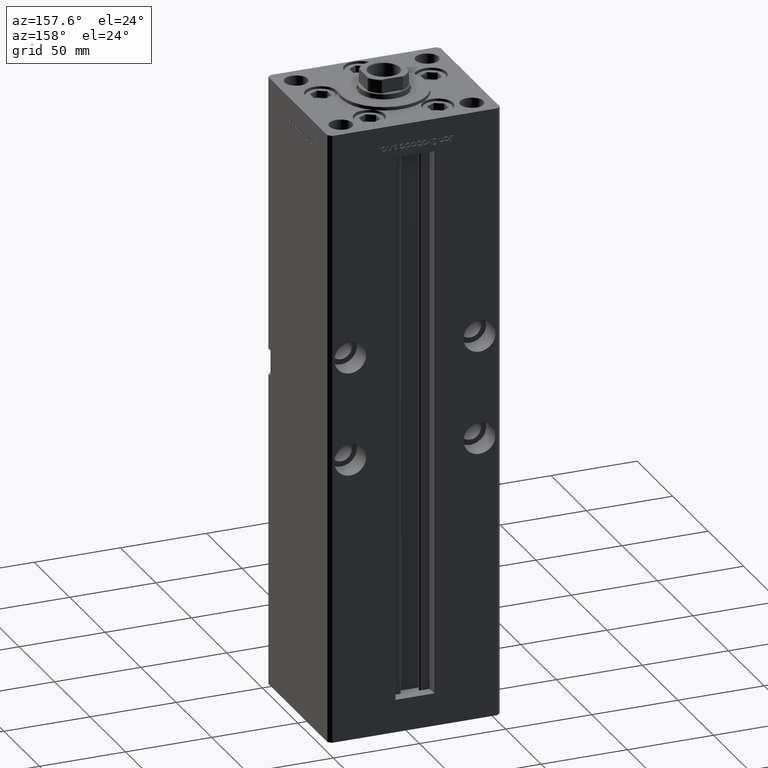
[diagram: clean part render]
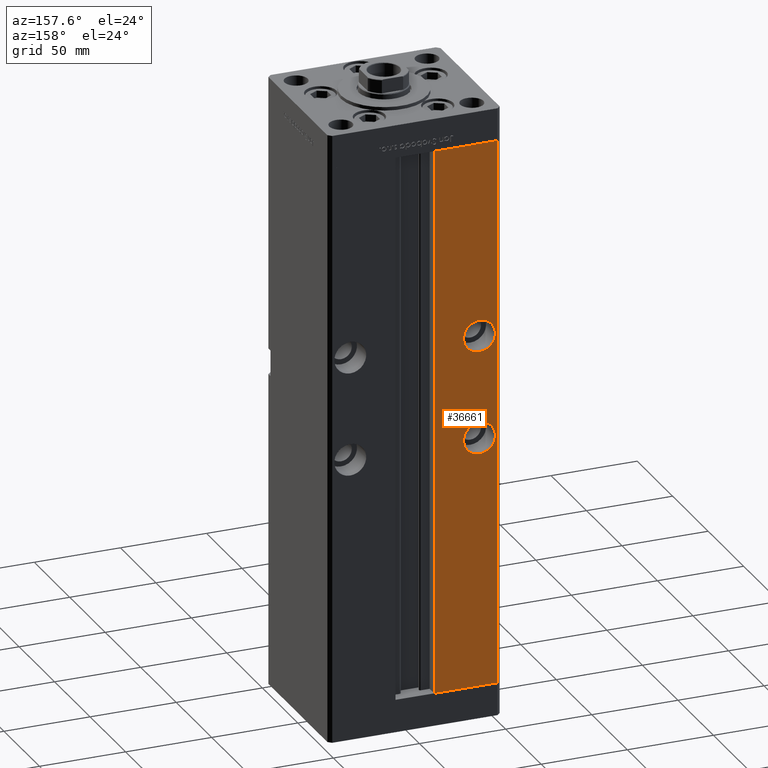
[diagram: same view with one face highlighted and labeled with its STEP entity id]
A machine part, auxiliary view. The second image highlights one B-rep face of the part: STEP entity #36661.
In plain terms, the highlighted planar face has unit normal (0, -1, 0).
Its self-contained STEP definition (entity closure, byte-faithful):
#342 = FACE_OUTER_BOUND ( 'NONE', #30468, .T. ) ;
#1383 = DIRECTION ( 'NONE',  ( 0.000000000000000000, 0.000000000000000000, 1.000000000000000000 ) ) ;
#1936 = VERTEX_POINT ( 'NONE', #13014 ) ;
#3519 = VERTEX_POINT ( 'NONE', #11415 ) ;
#4506 = CARTESIAN_POINT ( 'NONE',  ( -37.50000000000000000, 43.50000000000000000, 205.5000000000000284 ) ) ;
#4635 = CIRCLE ( 'NONE', #48369, 9.250000000000008882 ) ;
#4859 = EDGE_CURVE ( 'NONE', #6562, #31553, #5871, .T. ) ;
#4892 = DIRECTION ( 'NONE',  ( 0.000000000000000000, 1.000000000000000000, 0.000000000000000000 ) ) ;
#5013 = VERTEX_POINT ( 'NONE', #40283 ) ;
#5386 = VERTEX_POINT ( 'NONE', #28401 ) ;
#5871 = CIRCLE ( 'NONE', #45306, 9.250000000000008882 ) ;
#6562 = VERTEX_POINT ( 'NONE', #44976 ) ;
#8401 = EDGE_LOOP ( 'NONE', ( #11645, #49868 ) ) ;
#8670 = ORIENTED_EDGE ( 'NONE', *, *, #34543, .F. ) ;
#9161 = DIRECTION ( 'NONE',  ( -0.000000000000000000, -0.000000000000000000, 1.000000000000000000 ) ) ;
#9456 = DIRECTION ( 'NONE',  ( 0.000000000000000000, 0.000000000000000000, 1.000000000000000000 ) ) ;
#10815 = CARTESIAN_POINT ( 'NONE',  ( -48.00000000000000711, 43.50000000000000000, 0.000000000000000000 ) ) ;
#11415 = CARTESIAN_POINT ( 'NONE',  ( -48.00000000000000711, 43.50000000000000000, 318.5000000000000000 ) ) ;
#11475 = VERTEX_POINT ( 'NONE', #10815 ) ;
#11645 = ORIENTED_EDGE ( 'NONE', *, *, #4859, .F. ) ;
#12076 = CARTESIAN_POINT ( 'NONE',  ( -37.50000000000000000, 43.50000000000000000, 205.5000000000000284 ) ) ;
#13014 = CARTESIAN_POINT ( 'NONE',  ( -11.24999999999999645, 43.50000000000000000, 318.5000000000000000 ) ) ;
#13197 = LINE ( 'NONE', #21246, #48942 ) ;
#14990 = EDGE_CURVE ( 'NONE', #3519, #11475, #15185, .T. ) ;
#15185 = LINE ( 'NONE', #24022, #26635 ) ;
#15734 = DIRECTION ( 'NONE',  ( 1.000000000000000000, 0.000000000000000000, 0.000000000000000000 ) ) ;
#19973 = CARTESIAN_POINT ( 'NONE',  ( -11.24999999999999645, 43.50000000000000000, 318.5000000000000000 ) ) ;
#19997 = VECTOR ( 'NONE', #50868, 1000.000000000000000 ) ;
#21246 = CARTESIAN_POINT ( 'NONE',  ( -11.24999999999999645, 43.50000000000000000, 0.000000000000000000 ) ) ;
#21918 = ORIENTED_EDGE ( 'NONE', *, *, #31589, .F. ) ;
#23423 = ORIENTED_EDGE ( 'NONE', *, *, #14990, .F. ) ;
#23760 = DIRECTION ( 'NONE',  ( -0.000000000000000000, -0.000000000000000000, -1.000000000000000000 ) ) ;
#23996 = DIRECTION ( 'NONE',  ( 0.000000000000000000, -1.000000000000000000, 0.000000000000000000 ) ) ;
#24022 = CARTESIAN_POINT ( 'NONE',  ( -48.00000000000000711, 43.50000000000000000, 318.5000000000000000 ) ) ;
#26635 = VECTOR ( 'NONE', #23760, 1000.000000000000000 ) ;
#26674 = CARTESIAN_POINT ( 'NONE',  ( -11.24999999999999645, 43.50000000000000000, 0.000000000000000000 ) ) ;
#26905 = EDGE_CURVE ( 'NONE', #51044, #11475, #39557, .T. ) ;
#27547 = AXIS2_PLACEMENT_3D ( 'NONE', #19973, #23996, #45193 ) ;
#28189 = EDGE_CURVE ( 'NONE', #5386, #5013, #43193, .T. ) ;
#28401 = CARTESIAN_POINT ( 'NONE',  ( -37.50000000000000000, 43.50000000000000000, 196.2500000000000000 ) ) ;
#28824 = FACE_BOUND ( 'NONE', #31515, .T. ) ;
#28931 = EDGE_CURVE ( 'NONE', #31553, #6562, #4635, .T. ) ;
#29602 = CARTESIAN_POINT ( 'NONE',  ( -37.50000000000000000, 43.50000000000000000, 145.5000000000000284 ) ) ;
#30468 = EDGE_LOOP ( 'NONE', ( #30683, #8670, #48234, #23423 ) ) ;
#30683 = ORIENTED_EDGE ( 'NONE', *, *, #40248, .T. ) ;
#31515 = EDGE_LOOP ( 'NONE', ( #21918, #40925 ) ) ;
#31553 = VERTEX_POINT ( 'NONE', #37524 ) ;
#31589 = EDGE_CURVE ( 'NONE', #5013, #5386, #43999, .T. ) ;
#33483 = DIRECTION ( 'NONE',  ( 0.000000000000000000, 1.000000000000000000, -0.000000000000000000 ) ) ;
#34543 = EDGE_CURVE ( 'NONE', #51044, #1936, #13197, .T. ) ;
#36324 = AXIS2_PLACEMENT_3D ( 'NONE', #12076, #44834, #52127 ) ;
#36661 = ADVANCED_FACE ( 'NONE', ( #28824, #44150, #342 ), #48704, .F. ) ;
#37524 = CARTESIAN_POINT ( 'NONE',  ( -37.50000000000000000, 43.50000000000000000, 136.2500000000000000 ) ) ;
#39557 = LINE ( 'NONE', #26674, #19997 ) ;
#40248 = EDGE_CURVE ( 'NONE', #3519, #1936, #48498, .T. ) ;
#40283 = CARTESIAN_POINT ( 'NONE',  ( -37.50000000000000000, 43.50000000000000000, 214.7500000000000284 ) ) ;
#40925 = ORIENTED_EDGE ( 'NONE', *, *, #28189, .F. ) ;
#42216 = CARTESIAN_POINT ( 'NONE',  ( -37.50000000000000000, 43.50000000000000000, 145.5000000000000284 ) ) ;
#42741 = DIRECTION ( 'NONE',  ( 0.000000000000000000, 1.000000000000000000, 0.000000000000000000 ) ) ;
#43193 = CIRCLE ( 'NONE', #36324, 9.250000000000008882 ) ;
#43999 = CIRCLE ( 'NONE', #50001, 9.250000000000008882 ) ;
#44150 = FACE_BOUND ( 'NONE', #8401, .T. ) ;
#44834 = DIRECTION ( 'NONE',  ( 0.000000000000000000, 1.000000000000000000, -0.000000000000000000 ) ) ;
#44976 = CARTESIAN_POINT ( 'NONE',  ( -37.50000000000000000, 43.50000000000000000, 154.7500000000000284 ) ) ;
#45193 = DIRECTION ( 'NONE',  ( 0.000000000000000000, -0.000000000000000000, -1.000000000000000000 ) ) ;
#45306 = AXIS2_PLACEMENT_3D ( 'NONE', #42216, #4892, #1383 ) ;
#48234 = ORIENTED_EDGE ( 'NONE', *, *, #26905, .T. ) ;
#48369 = AXIS2_PLACEMENT_3D ( 'NONE', #29602, #42741, #9456 ) ;
#48498 = LINE ( 'NONE', #48765, #51685 ) ;
#48671 = CARTESIAN_POINT ( 'NONE',  ( -11.24999999999999645, 43.50000000000000000, 0.000000000000000000 ) ) ;
#48704 = PLANE ( 'NONE',  #27547 ) ;
#48765 = CARTESIAN_POINT ( 'NONE',  ( -11.24999999999999645, 43.50000000000000000, 318.5000000000000000 ) ) ;
#48942 = VECTOR ( 'NONE', #9161, 1000.000000000000000 ) ;
#49868 = ORIENTED_EDGE ( 'NONE', *, *, #28931, .F. ) ;
#49892 = DIRECTION ( 'NONE',  ( 0.000000000000000000, 0.000000000000000000, -1.000000000000000000 ) ) ;
#50001 = AXIS2_PLACEMENT_3D ( 'NONE', #4506, #33483, #49892 ) ;
#50868 = DIRECTION ( 'NONE',  ( -1.000000000000000000, 0.000000000000000000, 0.000000000000000000 ) ) ;
#51044 = VERTEX_POINT ( 'NONE', #48671 ) ;
#51685 = VECTOR ( 'NONE', #15734, 1000.000000000000000 ) ;
#52127 = DIRECTION ( 'NONE',  ( 0.000000000000000000, 0.000000000000000000, -1.000000000000000000 ) ) ;